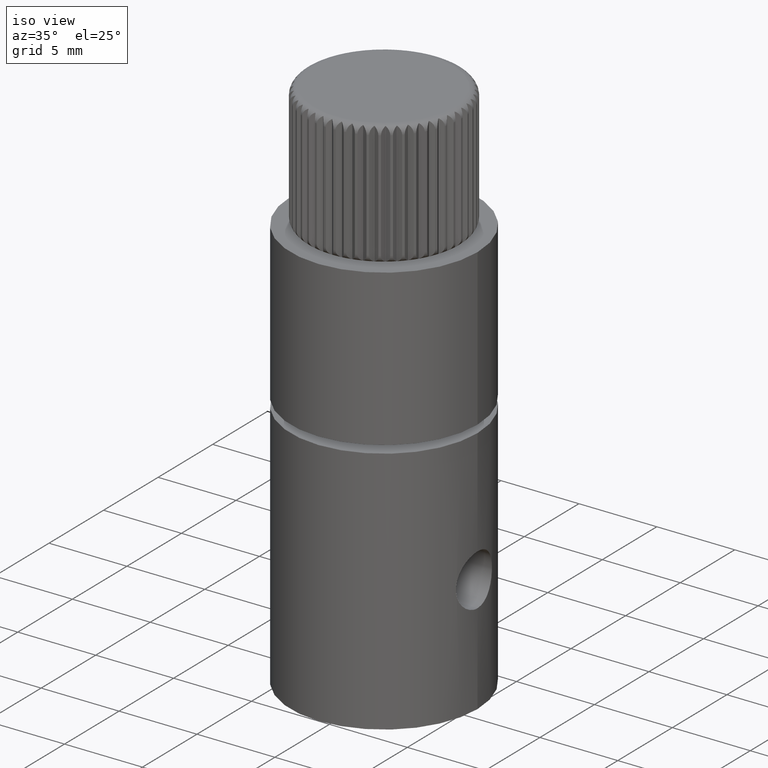
[diagram: clean part render]
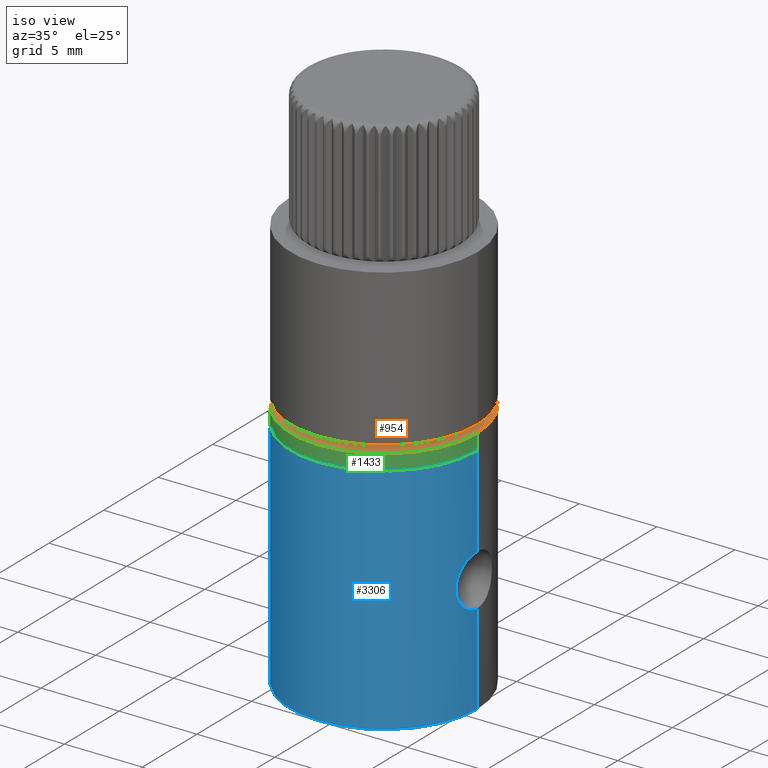
[diagram: same view with three faces highlighted in distinct colors, each labeled with its STEP entity id]
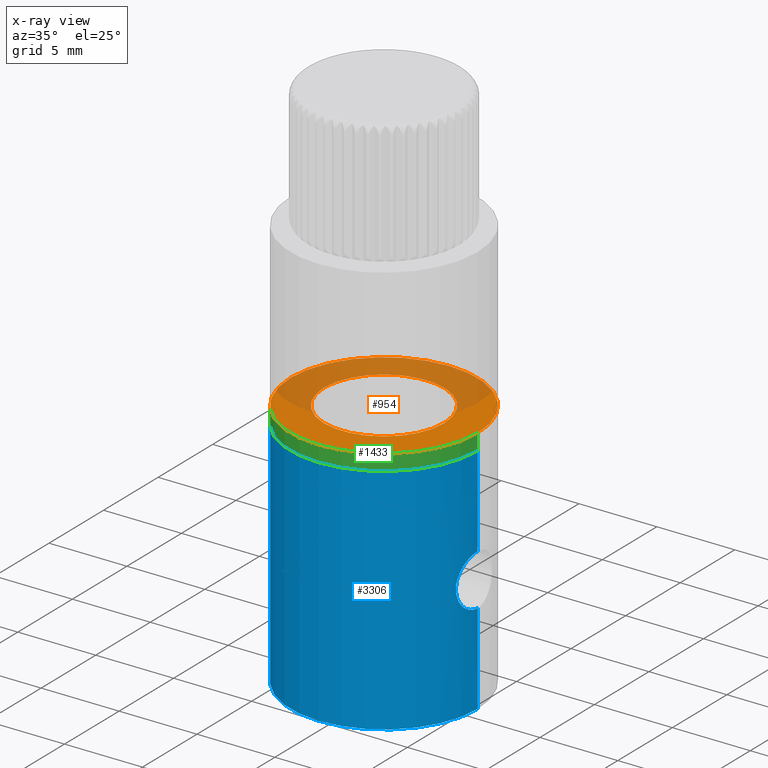
[diagram: x-ray of the same camera — body ghosted, the three highlighted faces saturated]
A machine part, iso view with three faces highlighted in distinct colors.
The next image is the same camera in x-ray (body ghosted, the three faces saturated) — at least one of them is partly hidden behind the body in this view.
Their STEP definitions:

[orange] entity #954 — the highlighted planar face has unit normal (0, 0, 1).
#837 = VERTEX_POINT ( 'NONE', #4148 ) ;
#913 = AXIS2_PLACEMENT_3D ( 'NONE', #5011, #11035, #3317 ) ;
#954 = ADVANCED_FACE ( 'NONE', ( #2180, #4569 ), #8454, .T. ) ;
#1128 = CIRCLE ( 'NONE', #6752, 3.850000000000001000 ) ;
#1217 = DIRECTION ( 'NONE',  ( 1.000000000000000000, 0.0000000000000000000, 0.0000000000000000000 ) ) ;
#1757 = ORIENTED_EDGE ( 'NONE', *, *, #5276, .F. ) ;
#1986 = DIRECTION ( 'NONE',  ( 0.0000000000000000000, 0.0000000000000000000, 1.000000000000000000 ) ) ;
#2092 = CARTESIAN_POINT ( 'NONE',  ( 0.0000000000000000000, 0.0000000000000000000, 16.00000000000000000 ) ) ;
#2095 = EDGE_CURVE ( 'NONE', #4143, #10917, #9984, .T. ) ;
#2128 = AXIS2_PLACEMENT_3D ( 'NONE', #9296, #5091, #11052 ) ;
#2180 = FACE_OUTER_BOUND ( 'NONE', #8141, .T. ) ;
#2575 = EDGE_CURVE ( 'NONE', #3441, #837, #1128, .T. ) ;
#2829 = CIRCLE ( 'NONE', #3852, 6.000000000000000900 ) ;
#2858 = ORIENTED_EDGE ( 'NONE', *, *, #2095, .T. ) ;
#3317 = DIRECTION ( 'NONE',  ( 1.000000000000000000, 0.0000000000000000000, 0.0000000000000000000 ) ) ;
#3441 = VERTEX_POINT ( 'NONE', #10395 ) ;
#3678 = ORIENTED_EDGE ( 'NONE', *, *, #2575, .F. ) ;
#3718 = DIRECTION ( 'NONE',  ( 1.000000000000000000, 0.0000000000000000000, 0.0000000000000000000 ) ) ;
#3852 = AXIS2_PLACEMENT_3D ( 'NONE', #10599, #10483, #1217 ) ;
#4143 = VERTEX_POINT ( 'NONE', #5838 ) ;
#4148 = CARTESIAN_POINT ( 'NONE',  ( -3.850000000000001000, 0.0000000000000000000, 16.00000000000000000 ) ) ;
#4290 = EDGE_CURVE ( 'NONE', #10917, #4143, #2829, .T. ) ;
#4569 = FACE_BOUND ( 'NONE', #9067, .T. ) ;
#5011 = CARTESIAN_POINT ( 'NONE',  ( 0.0000000000000000000, 0.0000000000000000000, 16.00000000000000000 ) ) ;
#5091 = DIRECTION ( 'NONE',  ( 0.0000000000000000000, 0.0000000000000000000, 1.000000000000000000 ) ) ;
#5276 = EDGE_CURVE ( 'NONE', #837, #3441, #7314, .T. ) ;
#5490 = DIRECTION ( 'NONE',  ( 1.000000000000000000, 0.0000000000000000000, 0.0000000000000000000 ) ) ;
#5838 = CARTESIAN_POINT ( 'NONE',  ( 6.000000000000000900, 7.347880794884120700E-016, 16.00000000000000000 ) ) ;
#6752 = AXIS2_PLACEMENT_3D ( 'NONE', #2092, #7160, #5490 ) ;
#7160 = DIRECTION ( 'NONE',  ( 0.0000000000000000000, 0.0000000000000000000, 1.000000000000000000 ) ) ;
#7314 = CIRCLE ( 'NONE', #913, 3.850000000000001000 ) ;
#7378 = CARTESIAN_POINT ( 'NONE',  ( -6.000000000000000900, 0.0000000000000000000, 16.00000000000000000 ) ) ;
#8141 = EDGE_LOOP ( 'NONE', ( #10707, #2858 ) ) ;
#8454 = PLANE ( 'NONE',  #2128 ) ;
#8837 = CARTESIAN_POINT ( 'NONE',  ( 0.0000000000000000000, 0.0000000000000000000, 16.00000000000000000 ) ) ;
#9067 = EDGE_LOOP ( 'NONE', ( #1757, #3678 ) ) ;
#9069 = AXIS2_PLACEMENT_3D ( 'NONE', #8837, #1986, #3718 ) ;
#9296 = CARTESIAN_POINT ( 'NONE',  ( 0.0000000000000000000, 0.0000000000000000000, 16.00000000000000000 ) ) ;
#9984 = CIRCLE ( 'NONE', #9069, 6.000000000000000900 ) ;
#10395 = CARTESIAN_POINT ( 'NONE',  ( 3.850000000000001000, 4.714890176717311500E-016, 16.00000000000000000 ) ) ;
#10483 = DIRECTION ( 'NONE',  ( 0.0000000000000000000, 0.0000000000000000000, 1.000000000000000000 ) ) ;
#10599 = CARTESIAN_POINT ( 'NONE',  ( 0.0000000000000000000, 0.0000000000000000000, 16.00000000000000000 ) ) ;
#10707 = ORIENTED_EDGE ( 'NONE', *, *, #4290, .T. ) ;
#10917 = VERTEX_POINT ( 'NONE', #7378 ) ;
#11035 = DIRECTION ( 'NONE',  ( 0.0000000000000000000, 0.0000000000000000000, 1.000000000000000000 ) ) ;
#11052 = DIRECTION ( 'NONE',  ( 1.000000000000000000, 0.0000000000000000000, -0.0000000000000000000 ) ) ;

[blue] entity #3306 — the highlighted cylindrical surface (partial cylindrical patch) has radius 6 mm, axis along (-0, -0, -1).
#7 = CARTESIAN_POINT ( 'NONE',  ( 5.999999999999996400, 7.347880794884115800E-016, -1.657192075796718000 ) ) ;
#141 = LINE ( 'NONE', #3012, #6430 ) ;
#252 = CARTESIAN_POINT ( 'NONE',  ( 5.999999999999994700, 7.347880794884114800E-016, 0.0000000000000000000 ) ) ;
#290 = CARTESIAN_POINT ( 'NONE',  ( 5.999999999999998200, 7.347880794884117800E-016, 15.00000000000000000 ) ) ;
#506 = CARTESIAN_POINT ( 'NONE',  ( -5.768663301305690700, -1.654382943241680800, 5.618653068495564000 ) ) ;
#527 = LINE ( 'NONE', #7, #11069 ) ;
#528 = CARTESIAN_POINT ( 'NONE',  ( 5.955988505022501700, -0.7322523116323566000, 8.982528997056114400 ) ) ;
#539 = CARTESIAN_POINT ( 'NONE',  ( -5.768759283832341800, -1.654032730495417200, 9.381625965770455300 ) ) ;
#581 = CARTESIAN_POINT ( 'NONE',  ( -5.491277066662539700, -2.418087471178595100, 6.844311378845910500 ) ) ;
#613 = CARTESIAN_POINT ( 'NONE',  ( -5.867820848286503300, -1.260060590211528700, 5.334719536471013200 ) ) ;
#626 = VECTOR ( 'NONE', #3232, 1000.000000000000000 ) ;
#632 = CARTESIAN_POINT ( 'NONE',  ( 5.915484562127305800, -1.007583558005456000, 8.811049370009321500 ) ) ;
#648 = CARTESIAN_POINT ( 'NONE',  ( -5.596114381309002200, -2.166263312547634700, 6.241672877864049300 ) ) ;
#668 = CARTESIAN_POINT ( 'NONE',  ( 5.999999999999996400, -0.2159647925685088700, 9.149999999999998600 ) ) ;
#674 = EDGE_CURVE ( 'NONE', #10750, #1963, #141, .T. ) ;
#710 = CARTESIAN_POINT ( 'NONE',  ( 5.997002265977783100, -0.2174401955422598500, 5.860806662649714800 ) ) ;
#711 = DIRECTION ( 'NONE',  ( -0.0000000000000000000, -0.0000000000000000000, -1.000000000000000000 ) ) ;
#736 = EDGE_CURVE ( 'NONE', #10710, #6894, #10132, .T. ) ;
#865 = CARTESIAN_POINT ( 'NONE',  ( 5.999999999999996400, -3.948237423828692300E-016, 5.850000000000002300 ) ) ;
#871 = VERTEX_POINT ( 'NONE', #7406 ) ;
#1236 = VERTEX_POINT ( 'NONE', #8109 ) ;
#1393 = CYLINDRICAL_SURFACE ( 'NONE', #8655, 5.999999999999996400 ) ;
#1417 = CARTESIAN_POINT ( 'NONE',  ( 0.0000000000000000000, 0.0000000000000000000, 0.0000000000000000000 ) ) ;
#1421 = CARTESIAN_POINT ( 'NONE',  ( -5.966320652023282100, -0.6550088422699774600, 9.918234214333573100 ) ) ;
#1441 = CARTESIAN_POINT ( 'NONE',  ( 5.987619033851820500, -0.4340373081428765000, 9.106379256325329400 ) ) ;
#1455 = CARTESIAN_POINT ( 'NONE',  ( -5.946762593001438700, -0.8121109664669659000, 5.129899997232389100 ) ) ;
#1473 = CARTESIAN_POINT ( 'NONE',  ( 5.783559762419552700, -1.597159132862059800, 7.071877368976823100 ) ) ;
#1489 = CARTESIAN_POINT ( 'NONE',  ( -5.999999999999998200, -0.1646041220039573000, 5.000000000000001800 ) ) ;
#1531 = CARTESIAN_POINT ( 'NONE',  ( -5.512398186896876800, -2.370252263024601000, 6.688496160139354000 ) ) ;
#1555 = EDGE_CURVE ( 'NONE', #10750, #4122, #8119, .T. ) ;
#1718 = ORIENTED_EDGE ( 'NONE', *, *, #674, .F. ) ;
#1811 = FACE_OUTER_BOUND ( 'NONE', #6810, .T. ) ;
#1876 = CARTESIAN_POINT ( 'NONE',  ( 5.999999999999996400, 7.347832891494713500E-016, 9.149999999999998600 ) ) ;
#1915 = DIRECTION ( 'NONE',  ( -1.000000000000000000, 0.0000000000000000000, 0.0000000000000000000 ) ) ;
#1963 = VERTEX_POINT ( 'NONE', #1876 ) ;
#2089 = DIRECTION ( 'NONE',  ( -1.000000000000000000, 0.0000000000000000000, 0.0000000000000000000 ) ) ;
#2215 = CARTESIAN_POINT ( 'NONE',  ( -5.992895555958781100, -0.3334989678857742100, 9.983077070339238200 ) ) ;
#2248 = CARTESIAN_POINT ( 'NONE',  ( -5.564731696079011400, -2.244635986508915200, 6.387236071508890100 ) ) ;
#2268 = CARTESIAN_POINT ( 'NONE',  ( 5.768659099457121200, -1.650021877057961100, 7.391545056056728800 ) ) ;
#2282 = CARTESIAN_POINT ( 'NONE',  ( -5.897238488634690700, -1.116433988101044800, 9.742958719824564200 ) ) ;
#2319 = CARTESIAN_POINT ( 'NONE',  ( -5.662472930091976100, -1.986351737220496800, 5.973405534651094600 ) ) ;
#2384 = LINE ( 'NONE', #8314, #626 ) ;
#2398 = LINE ( 'NONE', #5442, #4242 ) ;
#2562 = CARTESIAN_POINT ( 'NONE',  ( 5.945214142935276900, -0.8332934151265309900, 6.059694282413412100 ) ) ;
#3012 = CARTESIAN_POINT ( 'NONE',  ( 5.999999999999996400, 7.347880794884115800E-016, -1.657192075796718000 ) ) ;
#3046 = EDGE_CURVE ( 'NONE', #7685, #871, #7768, .T. ) ;
#3131 = CARTESIAN_POINT ( 'NONE',  ( 5.792431412652161900, -1.565107415277094100, 6.966585366164403000 ) ) ;
#3150 = CARTESIAN_POINT ( 'NONE',  ( -5.993028201139785500, -0.3316893159624689800, 5.016600661185322900 ) ) ;
#3168 = CARTESIAN_POINT ( 'NONE',  ( 5.771731454288531200, -1.639389166958112000, 7.284107799725696000 ) ) ;
#3232 = DIRECTION ( 'NONE',  ( -0.0000000000000000000, -0.0000000000000000000, -1.000000000000000000 ) ) ;
#3285 = CARTESIAN_POINT ( 'NONE',  ( 5.976921035363154100, -0.5351655980125620300, 5.935491322601461800 ) ) ;
#3306 = ADVANCED_FACE ( 'NONE', ( #1811 ), #1393, .T. ) ;
#3847 = DIRECTION ( 'NONE',  ( -0.0000000000000000000, -0.0000000000000000000, -1.000000000000000000 ) ) ;
#3945 = CARTESIAN_POINT ( 'NONE',  ( -5.966290413473937600, -0.6555787703010415000, 5.081838186911512300 ) ) ;
#3964 = CARTESIAN_POINT ( 'NONE',  ( 5.943169831353700700, -0.8288031049752622200, 8.930790162863912600 ) ) ;
#3976 = CARTESIAN_POINT ( 'NONE',  ( -5.662680758676490500, -1.985776905186847700, 9.027403528672906000 ) ) ;
#4002 = ORIENTED_EDGE ( 'NONE', *, *, #10042, .T. ) ;
#4015 = CARTESIAN_POINT ( 'NONE',  ( -5.596076034317159800, -2.166378616493325200, 8.758203142014974000 ) ) ;
#4122 = VERTEX_POINT ( 'NONE', #9190 ) ;
#4242 = VECTOR ( 'NONE', #711, 1000.000000000000000 ) ;
#4431 = ORIENTED_EDGE ( 'NONE', *, *, #6696, .T. ) ;
#4802 = CARTESIAN_POINT ( 'NONE',  ( 5.870450455548190200, -1.242510164139553100, 8.590984486581138700 ) ) ;
#4820 = AXIS2_PLACEMENT_3D ( 'NONE', #1417, #8947, #6368 ) ;
#4850 = CARTESIAN_POINT ( 'NONE',  ( -5.999999999999995600, -0.1671054223428516900, 9.999999999999998200 ) ) ;
#4943 = CARTESIAN_POINT ( 'NONE',  ( 5.771834421523010400, -1.639027237846642600, 7.718400709621419300 ) ) ;
#5232 = EDGE_CURVE ( 'NONE', #1963, #1236, #7152, .T. ) ;
#5442 = CARTESIAN_POINT ( 'NONE',  ( -5.999999999999996400, 0.0000000000000000000, -1.657192075796718000 ) ) ;
#5471 = EDGE_CURVE ( 'NONE', #1236, #10710, #527, .T. ) ;
#5678 = CARTESIAN_POINT ( 'NONE',  ( 5.855355882575288700, -1.318552907456807600, 6.485252295079423100 ) ) ;
#5695 = CARTESIAN_POINT ( 'NONE',  ( -5.462156378440703900, -2.483167037994902200, 7.166899343144645900 ) ) ;
#5715 = CARTESIAN_POINT ( 'NONE',  ( 5.827230891032155700, -1.430777496257445100, 8.328761493942872500 ) ) ;
#5731 = CARTESIAN_POINT ( 'NONE',  ( -5.897521238554087800, -1.114788231091693900, 5.256309859897229800 ) ) ;
#5750 = CARTESIAN_POINT ( 'NONE',  ( 5.999999999999996400, 7.347832891494713500E-016, 9.149999999999998600 ) ) ;
#5769 = CARTESIAN_POINT ( 'NONE',  ( -5.999999999999996400, 1.028501702097774900E-020, 5.000000000000000900 ) ) ;
#6368 = DIRECTION ( 'NONE',  ( -1.000000000000000000, 0.0000000000000000000, 0.0000000000000000000 ) ) ;
#6430 = VECTOR ( 'NONE', #3847, 1000.000000000000000 ) ;
#6484 = CARTESIAN_POINT ( 'NONE',  ( -5.946860788343252900, -0.8115992888655355600, 9.870357623426731000 ) ) ;
#6523 = CARTESIAN_POINT ( 'NONE',  ( -5.564698557009179100, -2.244716869438425600, 8.612588429651330200 ) ) ;
#6585 = CARTESIAN_POINT ( 'NONE',  ( -5.486245265971625400, -2.433024516705507800, 8.160922879050046300 ) ) ;
#6696 = EDGE_CURVE ( 'NONE', #4122, #871, #2398, .T. ) ;
#6810 = EDGE_LOOP ( 'NONE', ( #1718, #8400, #4431, #10982, #4002, #8929, #7498, #7125 ) ) ;
#6894 = VERTEX_POINT ( 'NONE', #7642 ) ;
#7125 = ORIENTED_EDGE ( 'NONE', *, *, #5232, .F. ) ;
#7152 = B_SPLINE_CURVE_WITH_KNOTS ( 'NONE', 3,
 ( #5750, #668, #1441, #528, #3964, #632, #10780, #4802, #7426, #5715, #9149, #10016, #7362, #4943, #8147, #2268, #3168, #1473, #3131, #9038, #5678, #7494, #2562, #3285, #11077, #710, #7567, #865 ),
 .UNSPECIFIED., .F., .F.,
 ( 4, 2, 2, 2, 2, 2, 2, 2, 2, 2, 2, 2, 2, 4 ),
 ( 0.005183740279562038500, 0.005831531806504573200, 0.006155427569975839700, 0.006479323333447106200, 0.006803219096918371900, 0.007127114860389638400, 0.007451010623860904900, 0.007774906387332168800, 0.008098802150803432700, 0.008422697914274695700, 0.009070489441217223500, 0.009718280968159749600, 0.01004217673163101600, 0.01036607249510227900 ),
 .UNSPECIFIED. ) ;
#7154 = DIRECTION ( 'NONE',  ( -0.0000000000000000000, -0.0000000000000000000, -1.000000000000000000 ) ) ;
#7312 = CARTESIAN_POINT ( 'NONE',  ( -5.697746658645217000, -1.884182109196804500, 5.848846773024124700 ) ) ;
#7362 = CARTESIAN_POINT ( 'NONE',  ( 5.783684991733300000, -1.596706232304496300, 7.929695664495597800 ) ) ;
#7376 = CARTESIAN_POINT ( 'NONE',  ( -5.803628135650792600, -1.528716671483799600, 5.515253790765174600 ) ) ;
#7406 = CARTESIAN_POINT ( 'NONE',  ( -5.999999999999996400, -3.796207753093473700E-017, 9.999999999999998200 ) ) ;
#7426 = CARTESIAN_POINT ( 'NONE',  ( 5.855198529404526100, -1.311638015023665900, 8.506764905617950800 ) ) ;
#7494 = CARTESIAN_POINT ( 'NONE',  ( 5.915351378997234700, -1.016067096390454100, 6.182463537492394000 ) ) ;
#7498 = ORIENTED_EDGE ( 'NONE', *, *, #5471, .F. ) ;
#7567 = CARTESIAN_POINT ( 'NONE',  ( 6.000000000000000000, -0.1095585920995997600, 5.850000000000005000 ) ) ;
#7642 = CARTESIAN_POINT ( 'NONE',  ( -5.999999999999994700, 0.0000000000000000000, 0.0000000000000000000 ) ) ;
#7685 = VERTEX_POINT ( 'NONE', #10442 ) ;
#7768 = B_SPLINE_CURVE_WITH_KNOTS ( 'NONE', 3,
 ( #5769, #1489, #3150, #3945, #1455, #5731, #613, #7376, #506, #7312, #2319, #648, #2248, #1531, #581, #5695, #9995, #8165, #6585, #6523, #4015, #3976, #9914, #539, #8123, #9055, #2282, #6484, #1421, #2215, #4850, #10760 ),
 .UNSPECIFIED., .F., .F.,
 ( 4, 2, 2, 2, 2, 2, 2, 2, 2, 2, 2, 2, 2, 2, 2, 4 ),
 ( 0.007907415464232892700, 0.008401230926880311200, 0.008895046389527729700, 0.009388861852175150000, 0.009882677314822568500, 0.01037649277746998700, 0.01087030824011740600, 0.01136412370276482600, 0.01185793916541224400, 0.01284557009070708100, 0.01333938555335449800, 0.01383320101600191500, 0.01432701647864933000, 0.01482083194129674700, 0.01531464740394416400, 0.01580846286659157900 ),
 .UNSPECIFIED. ) ;
#8109 = CARTESIAN_POINT ( 'NONE',  ( 5.999999999999996400, -3.948237423828692300E-016, 5.850000000000002300 ) ) ;
#8119 = CIRCLE ( 'NONE', #10810, 5.999999999999998200 ) ;
#8123 = CARTESIAN_POINT ( 'NONE',  ( -5.803883338356251400, -1.527725331987266100, 9.485483152737858200 ) ) ;
#8147 = CARTESIAN_POINT ( 'NONE',  ( 5.768671633504927100, -1.649978056010105400, 7.609119587245951200 ) ) ;
#8165 = CARTESIAN_POINT ( 'NONE',  ( -5.454317928402389300, -2.500083187475624000, 7.828959212421248800 ) ) ;
#8314 = CARTESIAN_POINT ( 'NONE',  ( -5.999999999999996400, 0.0000000000000000000, -1.657192075796718000 ) ) ;
#8400 = ORIENTED_EDGE ( 'NONE', *, *, #1555, .T. ) ;
#8655 = AXIS2_PLACEMENT_3D ( 'NONE', #8797, #9645, #1915 ) ;
#8797 = CARTESIAN_POINT ( 'NONE',  ( 0.0000000000000000000, 0.0000000000000000000, -1.657192075796718000 ) ) ;
#8929 = ORIENTED_EDGE ( 'NONE', *, *, #736, .F. ) ;
#8947 = DIRECTION ( 'NONE',  ( -0.0000000000000000000, -0.0000000000000000000, -1.000000000000000000 ) ) ;
#9038 = CARTESIAN_POINT ( 'NONE',  ( 5.824961243652600400, -1.441221036650761600, 6.668284005626581700 ) ) ;
#9055 = CARTESIAN_POINT ( 'NONE',  ( -5.867927242172510400, -1.259538159729434800, 9.665560357964389800 ) ) ;
#9149 = CARTESIAN_POINT ( 'NONE',  ( 5.814339824873981000, -1.481661471456282100, 8.234186609920147500 ) ) ;
#9190 = CARTESIAN_POINT ( 'NONE',  ( -5.999999999999998200, 0.0000000000000000000, 15.00000000000000000 ) ) ;
#9645 = DIRECTION ( 'NONE',  ( -0.0000000000000000000, -0.0000000000000000000, -1.000000000000000000 ) ) ;
#9750 = CARTESIAN_POINT ( 'NONE',  ( 0.0000000000000000000, 0.0000000000000000000, 15.00000000000000000 ) ) ;
#9914 = CARTESIAN_POINT ( 'NONE',  ( -5.697990486015799900, -1.883431010051971100, 9.151977051591922300 ) ) ;
#9995 = CARTESIAN_POINT ( 'NONE',  ( -5.454375176628048800, -2.499958286588243300, 7.334573000231099400 ) ) ;
#10016 = CARTESIAN_POINT ( 'NONE',  ( 5.792389679143386900, -1.565276371784466400, 8.033160927035435600 ) ) ;
#10042 = EDGE_CURVE ( 'NONE', #7685, #6894, #2384, .T. ) ;
#10108 = DIRECTION ( 'NONE',  ( -0.0000000000000000000, -0.0000000000000000000, -1.000000000000000000 ) ) ;
#10132 = CIRCLE ( 'NONE', #4820, 5.999999999999994700 ) ;
#10442 = CARTESIAN_POINT ( 'NONE',  ( -5.999999999999996400, 1.028501702097774900E-020, 5.000000000000000900 ) ) ;
#10710 = VERTEX_POINT ( 'NONE', #252 ) ;
#10750 = VERTEX_POINT ( 'NONE', #290 ) ;
#10760 = CARTESIAN_POINT ( 'NONE',  ( -5.999999999999996400, -3.796207753093473700E-017, 9.999999999999998200 ) ) ;
#10780 = CARTESIAN_POINT ( 'NONE',  ( 5.900617108865222200, -1.090292526619852200, 8.743117397653062300 ) ) ;
#10810 = AXIS2_PLACEMENT_3D ( 'NONE', #9750, #7154, #2089 ) ;
#10982 = ORIENTED_EDGE ( 'NONE', *, *, #3046, .F. ) ;
#11069 = VECTOR ( 'NONE', #10108, 1000.000000000000000 ) ;
#11077 = CARTESIAN_POINT ( 'NONE',  ( 5.985525288074486900, -0.4298877092926666200, 5.903306042708830900 ) ) ;

[green] entity #1433 — the highlighted cylindrical surface (partial cylindrical patch) has radius 6 mm, axis along (-0, -0, -1).
#156 = VERTEX_POINT ( 'NONE', #4466 ) ;
#1217 = DIRECTION ( 'NONE',  ( 1.000000000000000000, 0.0000000000000000000, 0.0000000000000000000 ) ) ;
#1433 = ADVANCED_FACE ( 'NONE', ( #4141 ), #2565, .T. ) ;
#1696 = CIRCLE ( 'NONE', #6575, 6.000000000000000900 ) ;
#1938 = DIRECTION ( 'NONE',  ( -1.000000000000000000, 0.0000000000000000000, 0.0000000000000000000 ) ) ;
#2317 = EDGE_CURVE ( 'NONE', #10917, #156, #5741, .T. ) ;
#2565 = CYLINDRICAL_SURFACE ( 'NONE', #8718, 6.000000000000000900 ) ;
#2829 = CIRCLE ( 'NONE', #3852, 6.000000000000000900 ) ;
#3086 = DIRECTION ( 'NONE',  ( 0.0000000000000000000, 0.0000000000000000000, 1.000000000000000000 ) ) ;
#3402 = VERTEX_POINT ( 'NONE', #7647 ) ;
#3547 = EDGE_LOOP ( 'NONE', ( #8124, #10515, #7598, #6957 ) ) ;
#3846 = LINE ( 'NONE', #8038, #10209 ) ;
#3852 = AXIS2_PLACEMENT_3D ( 'NONE', #10599, #10483, #1217 ) ;
#4141 = FACE_OUTER_BOUND ( 'NONE', #3547, .T. ) ;
#4143 = VERTEX_POINT ( 'NONE', #5838 ) ;
#4290 = EDGE_CURVE ( 'NONE', #10917, #4143, #2829, .T. ) ;
#4466 = CARTESIAN_POINT ( 'NONE',  ( -6.000000000000000900, 0.0000000000000000000, 15.00000000000000000 ) ) ;
#4687 = VECTOR ( 'NONE', #4875, 1000.000000000000000 ) ;
#4783 = CARTESIAN_POINT ( 'NONE',  ( 0.0000000000000000000, 0.0000000000000000000, 15.00000000000000000 ) ) ;
#4875 = DIRECTION ( 'NONE',  ( -0.0000000000000000000, -0.0000000000000000000, -1.000000000000000000 ) ) ;
#5741 = LINE ( 'NONE', #6639, #4687 ) ;
#5838 = CARTESIAN_POINT ( 'NONE',  ( 6.000000000000000900, 7.347880794884120700E-016, 16.00000000000000000 ) ) ;
#6156 = CARTESIAN_POINT ( 'NONE',  ( 0.0000000000000000000, 0.0000000000000000000, 16.00000000000000000 ) ) ;
#6485 = DIRECTION ( 'NONE',  ( 1.000000000000000000, 0.0000000000000000000, 0.0000000000000000000 ) ) ;
#6575 = AXIS2_PLACEMENT_3D ( 'NONE', #4783, #3086, #6485 ) ;
#6639 = CARTESIAN_POINT ( 'NONE',  ( -6.000000000000000900, 0.0000000000000000000, 16.00000000000000000 ) ) ;
#6957 = ORIENTED_EDGE ( 'NONE', *, *, #8911, .T. ) ;
#7003 = DIRECTION ( 'NONE',  ( -0.0000000000000000000, -0.0000000000000000000, -1.000000000000000000 ) ) ;
#7366 = DIRECTION ( 'NONE',  ( -0.0000000000000000000, -0.0000000000000000000, -1.000000000000000000 ) ) ;
#7378 = CARTESIAN_POINT ( 'NONE',  ( -6.000000000000000900, 0.0000000000000000000, 16.00000000000000000 ) ) ;
#7598 = ORIENTED_EDGE ( 'NONE', *, *, #2317, .T. ) ;
#7647 = CARTESIAN_POINT ( 'NONE',  ( 6.000000000000000900, 7.347880794884120700E-016, 15.00000000000000000 ) ) ;
#8033 = EDGE_CURVE ( 'NONE', #4143, #3402, #3846, .T. ) ;
#8038 = CARTESIAN_POINT ( 'NONE',  ( 6.000000000000000900, 7.347880794884120700E-016, 16.00000000000000000 ) ) ;
#8124 = ORIENTED_EDGE ( 'NONE', *, *, #8033, .F. ) ;
#8718 = AXIS2_PLACEMENT_3D ( 'NONE', #6156, #7003, #1938 ) ;
#8911 = EDGE_CURVE ( 'NONE', #156, #3402, #1696, .T. ) ;
#10209 = VECTOR ( 'NONE', #7366, 1000.000000000000000 ) ;
#10483 = DIRECTION ( 'NONE',  ( 0.0000000000000000000, 0.0000000000000000000, 1.000000000000000000 ) ) ;
#10515 = ORIENTED_EDGE ( 'NONE', *, *, #4290, .F. ) ;
#10599 = CARTESIAN_POINT ( 'NONE',  ( 0.0000000000000000000, 0.0000000000000000000, 16.00000000000000000 ) ) ;
#10917 = VERTEX_POINT ( 'NONE', #7378 ) ;